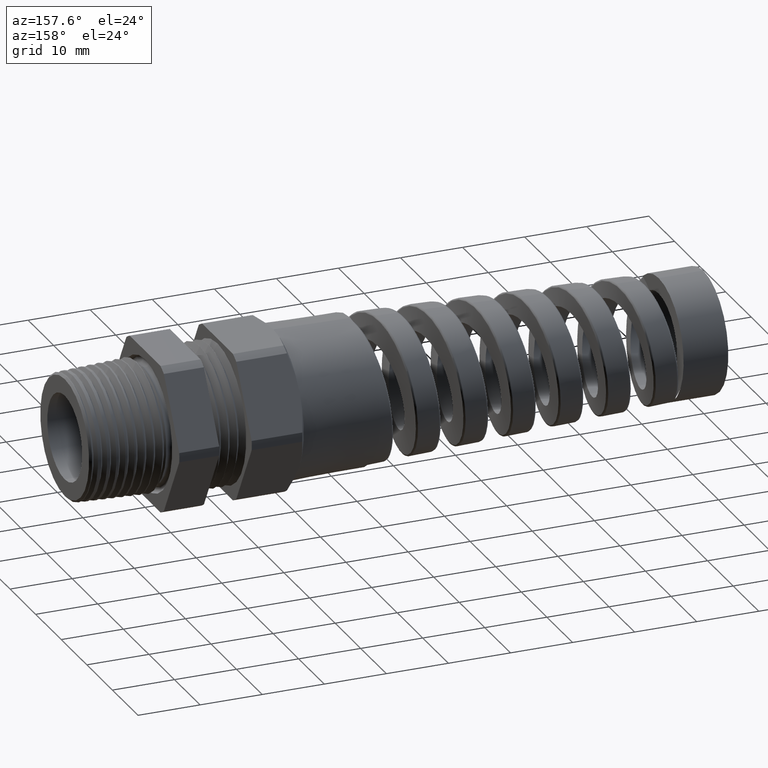
[diagram: clean part render]
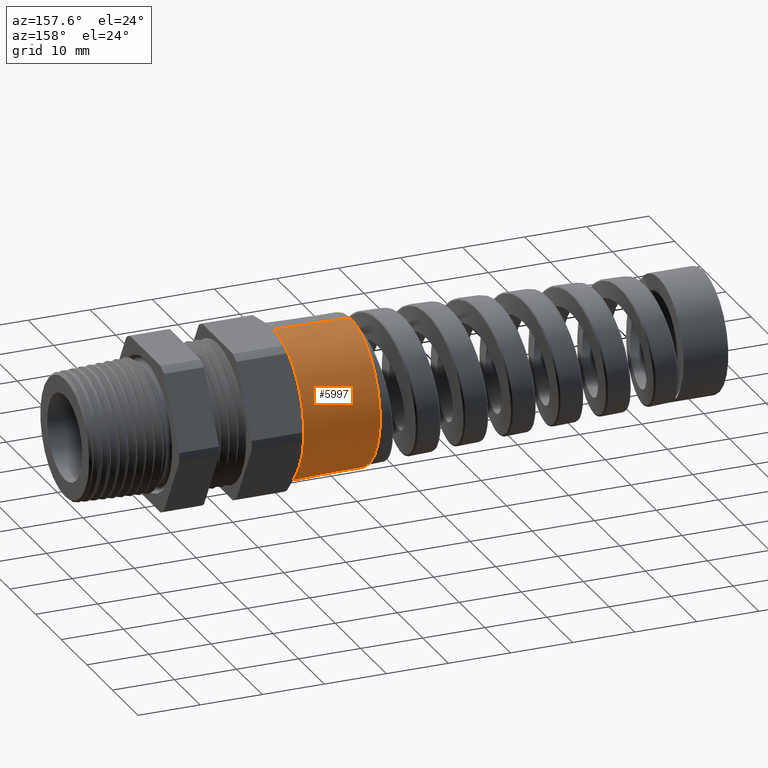
[diagram: same view with one face highlighted and labeled with its STEP entity id]
A machine part, auxiliary view. The second image highlights one B-rep face of the part: STEP entity #5997.
In plain terms, the highlighted conical surface has half-angle 1 deg.
Its self-contained STEP definition (entity closure, byte-faithful):
#4111 = VERTEX_POINT ( 'NONE', #6801 ) ;
#4118 = EDGE_CURVE ( 'NONE', #4840, #4111, #6852, .T. ) ;
#4252 = EDGE_CURVE ( 'NONE', #5239, #5165, #6826, .T. ) ;
#4267 = EDGE_CURVE ( 'NONE', #4712, #5239, #6858, .T. ) ;
#4710 = EDGE_CURVE ( 'NONE', #4818, #4712, #10891, .T. ) ;
#4712 = VERTEX_POINT ( 'NONE', #10959 ) ;
#4818 = VERTEX_POINT ( 'NONE', #11040 ) ;
#4840 = VERTEX_POINT ( 'NONE', #11034 ) ;
#5165 = VERTEX_POINT ( 'NONE', #11487 ) ;
#5239 = VERTEX_POINT ( 'NONE', #11590 ) ;
#5749 = ORIENTED_EDGE ( 'NONE', *, *, #4267, .T. ) ;
#5750 = ORIENTED_EDGE ( 'NONE', *, *, #5940, .T. ) ;
#5759 = EDGE_LOOP ( 'NONE', ( #5760, #5762, #5764, #5749, #5763, #5750 ) ) ;
#5760 = ORIENTED_EDGE ( 'NONE', *, *, #4118, .F. ) ;
#5762 = ORIENTED_EDGE ( 'NONE', *, *, #10060, .F. ) ;
#5763 = ORIENTED_EDGE ( 'NONE', *, *, #4252, .T. ) ;
#5764 = ORIENTED_EDGE ( 'NONE', *, *, #4710, .T. ) ;
#5940 = EDGE_CURVE ( 'NONE', #5165, #4111, #12476, .T. ) ;
#5997 = ADVANCED_FACE ( 'NONE', ( #12405 ), #12445, .T. ) ;
#6801 = CARTESIAN_POINT ( 'NONE',  ( -0.8125000000000000000, 0.0000000000000000000, -0.4699999999999999200 ) ) ;
#6823 = DIRECTION ( 'NONE',  ( 0.0000000000000000000, 0.0000000000000000000, 1.000000000000000000 ) ) ;
#6824 = DIRECTION ( 'NONE',  ( -1.000000000000000000, 0.0000000000000000000, 0.0000000000000000000 ) ) ;
#6825 = AXIS2_PLACEMENT_3D ( 'NONE', #6832, #6824, #6823 ) ;
#6826 = CIRCLE ( 'NONE', #6825, 0.4699999999999997000 ) ;
#6832 = CARTESIAN_POINT ( 'NONE',  ( -0.8125000000000000000, 0.0000000000000000000, 0.0000000000000000000 ) ) ;
#6849 = DIRECTION ( 'NONE',  ( 0.9998476951563912700, -2.137303368083796300E-018, -0.01745240643728355000 ) ) ;
#6850 = VECTOR ( 'NONE', #6849, 39.37007874015748100 ) ;
#6851 = CARTESIAN_POINT ( 'NONE',  ( -0.8125000000000000000, -5.755839955992557200E-017, -0.4699999999999997500 ) ) ;
#6852 = LINE ( 'NONE', #6851, #6850 ) ;
#6855 = DIRECTION ( 'NONE',  ( 0.0000000000000000000, 0.0000000000000000000, 1.000000000000000000 ) ) ;
#6856 = DIRECTION ( 'NONE',  ( -1.000000000000000000, 0.0000000000000000000, 0.0000000000000000000 ) ) ;
#6857 = AXIS2_PLACEMENT_3D ( 'NONE', #6863, #6856, #6855 ) ;
#6858 = CIRCLE ( 'NONE', #6857, 0.4699999999999997000 ) ;
#6863 = CARTESIAN_POINT ( 'NONE',  ( -0.8125000000000000000, 0.0000000000000000000, 0.0000000000000000000 ) ) ;
#9401 = CARTESIAN_POINT ( 'NONE',  ( -1.301020000000000100, 0.0000000000000000000, 0.0000000000000000000 ) ) ;
#9457 = DIRECTION ( 'NONE',  ( 0.0000000000000000000, 0.0000000000000000000, 1.000000000000000000 ) ) ;
#9458 = DIRECTION ( 'NONE',  ( -1.000000000000000000, 0.0000000000000000000, 0.0000000000000000000 ) ) ;
#9459 = AXIS2_PLACEMENT_3D ( 'NONE', #9401, #9458, #9457 ) ;
#9460 = CIRCLE ( 'NONE', #9459, 0.4614728516812668400 ) ;
#10060 = EDGE_CURVE ( 'NONE', #4818, #4840, #9460, .T. ) ;
#10888 = DIRECTION ( 'NONE',  ( 0.9998476951563912700, 0.0000000000000000000, 0.01745240643728355000 ) ) ;
#10889 = VECTOR ( 'NONE', #10888, 39.37007874015748100 ) ;
#10890 = CARTESIAN_POINT ( 'NONE',  ( -0.8125000000000000000, 0.0000000000000000000, 0.4699999999999997500 ) ) ;
#10891 = LINE ( 'NONE', #10890, #10889 ) ;
#10959 = CARTESIAN_POINT ( 'NONE',  ( -0.8125000000000001100, 0.0000000000000000000, 0.4699999999999997000 ) ) ;
#11034 = CARTESIAN_POINT ( 'NONE',  ( -1.301020000000000100, -5.703626231520601100E-017, -0.4614728516812668400 ) ) ;
#11040 = CARTESIAN_POINT ( 'NONE',  ( -1.301020000000000100, 0.0000000000000000000, 0.4614728516812668400 ) ) ;
#11487 = CARTESIAN_POINT ( 'NONE',  ( -0.8125000000000000000, 0.4070319397786862400, -0.2350000000000001000 ) ) ;
#11590 = CARTESIAN_POINT ( 'NONE',  ( -0.8125000000000000000, 0.4070319397786859000, 0.2349999999999999600 ) ) ;
#12405 = FACE_OUTER_BOUND ( 'NONE', #5759, .T. ) ;
#12441 = DIRECTION ( 'NONE',  ( 0.0000000000000000000, 0.0000000000000000000, 1.000000000000000000 ) ) ;
#12442 = DIRECTION ( 'NONE',  ( 1.000000000000000000, 0.0000000000000000000, 0.0000000000000000000 ) ) ;
#12443 = CARTESIAN_POINT ( 'NONE',  ( -0.8125000000000000000, 0.0000000000000000000, 0.0000000000000000000 ) ) ;
#12444 = AXIS2_PLACEMENT_3D ( 'NONE', #12443, #12442, #12441 ) ;
#12445 = CONICAL_SURFACE ( 'NONE', #12444, 0.4699999999999997500, 0.01745329251994333400 ) ;
#12472 = DIRECTION ( 'NONE',  ( 0.0000000000000000000, 0.0000000000000000000, 1.000000000000000000 ) ) ;
#12473 = DIRECTION ( 'NONE',  ( -1.000000000000000000, 0.0000000000000000000, 0.0000000000000000000 ) ) ;
#12474 = CARTESIAN_POINT ( 'NONE',  ( -0.8125000000000000000, 0.0000000000000000000, 0.0000000000000000000 ) ) ;
#12475 = AXIS2_PLACEMENT_3D ( 'NONE', #12474, #12473, #12472 ) ;
#12476 = CIRCLE ( 'NONE', #12475, 0.4699999999999997000 ) ;